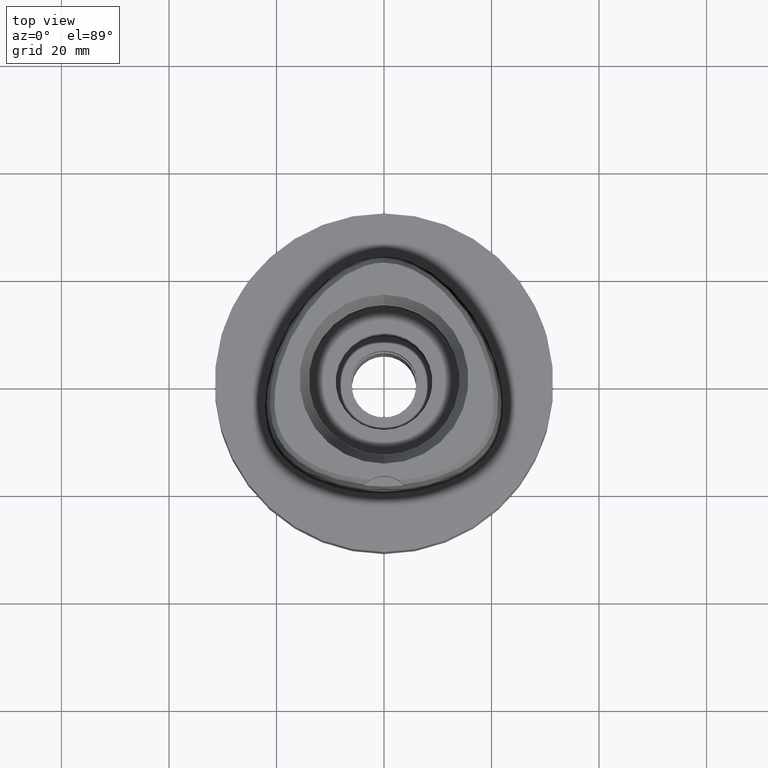
[diagram: clean part render]
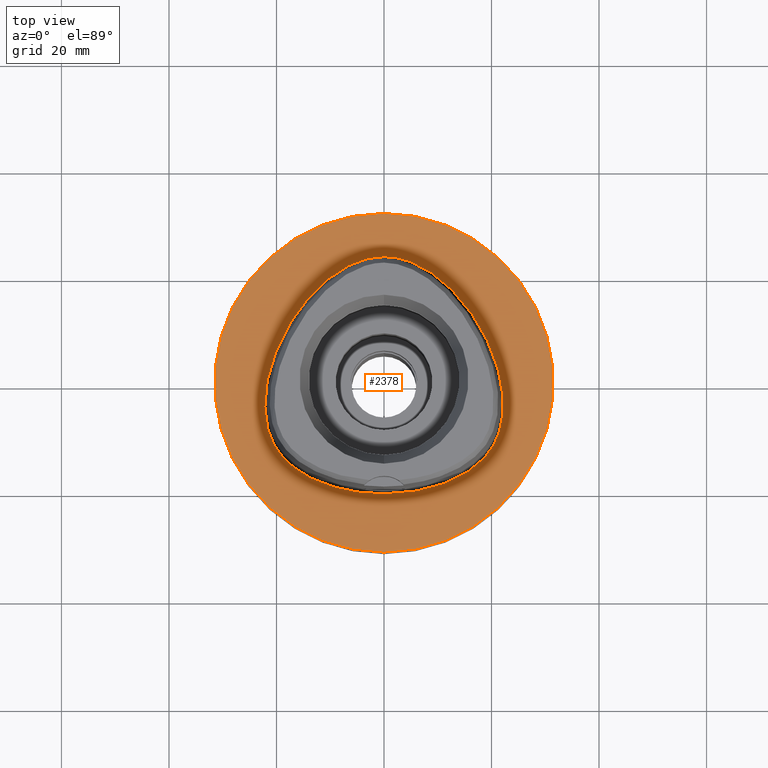
[diagram: same view with one face highlighted and labeled with its STEP entity id]
A machine part, top view. The second image highlights one B-rep face of the part: STEP entity #2378.
In plain terms, the highlighted planar face has unit normal (0, 0, -1).
Its self-contained STEP definition (entity closure, byte-faithful):
#301=CARTESIAN_POINT('',(0.E0,0.E0,0.E0));
#302=DIRECTION('',(0.E0,0.E0,-1.E0));
#303=DIRECTION('',(0.E0,-1.E0,0.E0));
#304=AXIS2_PLACEMENT_3D('',#301,#302,#303);
#309=CARTESIAN_POINT('',(0.E0,0.E0,0.E0));
#310=DIRECTION('',(0.E0,0.E0,-1.E0));
#311=DIRECTION('',(0.E0,1.E0,0.E0));
#312=AXIS2_PLACEMENT_3D('',#309,#310,#311);
#317=CARTESIAN_POINT('',(-1.332771030677E-11,-2.0675E1,1.593170040337E-13));
#318=CARTESIAN_POINT('',(8.668635618114E-1,-2.0675E1,1.593170040337E-13));
#319=CARTESIAN_POINT('',(2.574085744669E0,-2.061244379246E1,
-7.393927889095E-14));
#320=CARTESIAN_POINT('',(5.087321763259E0,-2.033692107424E1,
1.981197006777E-14));
#321=CARTESIAN_POINT('',(7.457228239742E0,-1.989746383402E1,0.E0));
#322=CARTESIAN_POINT('',(9.642360931013E0,-1.932000469216E1,0.E0));
#323=CARTESIAN_POINT('',(1.161475875249E1,-1.863271590628E1,0.E0));
#324=CARTESIAN_POINT('',(1.336657883010E1,-1.786245913721E1,0.E0));
#325=CARTESIAN_POINT('',(1.490385795272E1,-1.703152855201E1,0.E0));
#326=CARTESIAN_POINT('',(1.624039232175E1,-1.615727891587E1,0.E0));
#327=CARTESIAN_POINT('',(1.739413633099E1,-1.525169519717E1,0.E0));
#328=CARTESIAN_POINT('',(1.838376037085E1,-1.432241133478E1,0.E0));
#329=CARTESIAN_POINT('',(1.922761646808E1,-1.337160235576E1,0.E0));
#330=CARTESIAN_POINT('',(1.993658075864E1,-1.240633860554E1,0.E0));
#331=CARTESIAN_POINT('',(2.053390309276E1,-1.140907348742E1,0.E0));
#332=CARTESIAN_POINT('',(2.104266179985E1,-1.034118628221E1,0.E0));
#333=CARTESIAN_POINT('',(2.147165783006E1,-9.172770173640E0,0.E0));
#334=CARTESIAN_POINT('',(2.181304575510E1,-7.891292903678E0,0.E0));
#335=CARTESIAN_POINT('',(2.205614142327E1,-6.484116343921E0,0.E0));
#336=CARTESIAN_POINT('',(2.218642871279E1,-4.937696867047E0,0.E0));
#337=CARTESIAN_POINT('',(2.218554074858E1,-3.241749842939E0,0.E0));
#338=CARTESIAN_POINT('',(2.203215039418E1,-1.390046967667E0,0.E0));
#339=CARTESIAN_POINT('',(2.170379289163E1,6.141816135157E-1,0.E0));
#340=CARTESIAN_POINT('',(2.117959066825E1,2.756605347947E0,0.E0));
#341=CARTESIAN_POINT('',(2.044533571743E1,5.004906549923E0,0.E0));
#342=CARTESIAN_POINT('',(1.949764110724E1,7.310997169144E0,0.E0));
#343=CARTESIAN_POINT('',(1.834957951011E1,9.609775913951E0,0.E0));
#344=CARTESIAN_POINT('',(1.702834160611E1,1.183387703272E1,0.E0));
#345=CARTESIAN_POINT('',(1.556975211006E1,1.392549374732E1,0.E0));
#346=CARTESIAN_POINT('',(1.402194911132E1,1.582979053308E1,0.E0));
#347=CARTESIAN_POINT('',(1.243311121268E1,1.751093298070E1,0.E0));
#348=CARTESIAN_POINT('',(1.084451840912E1,1.895373723494E1,0.E0));
#349=CARTESIAN_POINT('',(9.286412256216E0,2.016070912591E1,0.E0));
#350=CARTESIAN_POINT('',(7.778977833570E0,2.114525500213E1,0.E0));
#351=CARTESIAN_POINT('',(6.332494175989E0,2.192732779116E1,0.E0));
#352=CARTESIAN_POINT('',(4.950310982552E0,2.252847672854E1,0.E0));
#353=CARTESIAN_POINT('',(3.631073081959E0,2.296926503261E1,0.E0));
#354=CARTESIAN_POINT('',(2.369413139661E0,2.326780726425E1,1.944840546025E-14));
#355=CARTESIAN_POINT('',(1.160510589301E0,2.343866324057E1,
-7.258243730387E-14));
#356=CARTESIAN_POINT('',(3.818535017165E-1,2.347499999998E1,
1.563934167355E-13));
#357=CARTESIAN_POINT('',(6.589893037965E-11,2.347499999998E1,
1.563934167355E-13));
#362=CARTESIAN_POINT('',(6.589893037965E-11,2.347499999998E1,
1.563934167355E-13));
#363=CARTESIAN_POINT('',(-3.819545190614E-1,2.347499999999E1,
1.563934167355E-13));
#364=CARTESIAN_POINT('',(-1.160757516219E0,2.343864704430E1,
-7.258243730387E-14));
#365=CARTESIAN_POINT('',(-2.369807174949E0,2.326773017827E1,
1.944840546025E-14));
#366=CARTESIAN_POINT('',(-3.631252223979E0,2.296920921338E1,0.E0));
#367=CARTESIAN_POINT('',(-4.950454033620E0,2.252841793327E1,0.E0));
#368=CARTESIAN_POINT('',(-6.332411567799E0,2.192736086309E1,0.E0));
#369=CARTESIAN_POINT('',(-7.778752385116E0,2.114538338227E1,0.E0));
#370=CARTESIAN_POINT('',(-9.286019125052E0,2.016098635863E1,0.E0));
#371=CARTESIAN_POINT('',(-1.084406646814E1,1.895410829066E1,0.E0));
#372=CARTESIAN_POINT('',(-1.243235778341E1,1.751165920306E1,0.E0));
#373=CARTESIAN_POINT('',(-1.402095187697E1,1.583090207640E1,0.E0));
#374=CARTESIAN_POINT('',(-1.556828502197E1,1.392741876260E1,0.E0));
#375=CARTESIAN_POINT('',(-1.702671218922E1,1.183635541367E1,0.E0));
#376=CARTESIAN_POINT('',(-1.834730189492E1,9.613868436354E0,0.E0));
#377=CARTESIAN_POINT('',(-1.949526550911E1,7.316168079458E0,0.E0));
#378=CARTESIAN_POINT('',(-2.044312664864E1,5.010861006236E0,0.E0));
#379=CARTESIAN_POINT('',(-2.117774183152E1,2.762973988794E0,0.E0));
#380=CARTESIAN_POINT('',(-2.170223892092E1,6.216685355003E-1,0.E0));
#381=CARTESIAN_POINT('',(-2.203121897998E1,-1.382634589253E0,0.E0));
#382=CARTESIAN_POINT('',(-2.218518521946E1,-3.233837404459E0,0.E0));
#383=CARTESIAN_POINT('',(-2.218674296750E1,-4.930047686920E0,0.E0));
#384=CARTESIAN_POINT('',(-2.205706089626E1,-6.476768816872E0,0.E0));
#385=CARTESIAN_POINT('',(-2.181462267954E1,-7.884203811980E0,0.E0));
#386=CARTESIAN_POINT('',(-2.147337154019E1,-9.167300862221E0,0.E0));
#387=CARTESIAN_POINT('',(-2.104541432008E1,-1.033455454665E1,0.E0));
#388=CARTESIAN_POINT('',(-2.053658335525E1,-1.140432066571E1,0.E0));
#389=CARTESIAN_POINT('',(-1.993711357872E1,-1.240580849703E1,0.E0));
#390=CARTESIAN_POINT('',(-1.922639118946E1,-1.337308812219E1,0.E0));
#391=CARTESIAN_POINT('',(-1.838389785149E1,-1.432221973386E1,0.E0));
#392=CARTESIAN_POINT('',(-1.739384369291E1,-1.525196830095E1,0.E0));
#393=CARTESIAN_POINT('',(-1.624039636135E1,-1.615725904871E1,0.E0));
#394=CARTESIAN_POINT('',(-1.490383773263E1,-1.703154696986E1,0.E0));
#395=CARTESIAN_POINT('',(-1.336647307652E1,-1.786251367714E1,0.E0));
#396=CARTESIAN_POINT('',(-1.161444967383E1,-1.863284557045E1,0.E0));
#397=CARTESIAN_POINT('',(-9.641769449060E0,-1.932018822941E1,0.E0));
#398=CARTESIAN_POINT('',(-7.456544357522E0,-1.989762187118E1,0.E0));
#399=CARTESIAN_POINT('',(-5.086424272104E0,-2.033704833770E1,
1.981197006777E-14));
#400=CARTESIAN_POINT('',(-2.573714508968E0,-2.061245729780E1,
-7.393927889095E-14));
#401=CARTESIAN_POINT('',(-8.667254885380E-1,-2.0675E1,1.593170040337E-13));
#402=CARTESIAN_POINT('',(-1.332771030677E-11,-2.0675E1,1.593170040337E-13));
#1538=VERTEX_POINT('',#362);
#1539=VERTEX_POINT('',#402);
#1544=CARTESIAN_POINT('',(0.E0,-3.15E1,0.E0));
#1545=CARTESIAN_POINT('',(0.E0,3.15E1,0.E0));
#1546=VERTEX_POINT('',#1544);
#1547=VERTEX_POINT('',#1545);
#2362=CARTESIAN_POINT('',(0.E0,0.E0,0.E0));
#2363=DIRECTION('',(0.E0,0.E0,-1.E0));
#2364=DIRECTION('',(0.E0,-1.E0,0.E0));
#2365=AXIS2_PLACEMENT_3D('',#2362,#2363,#2364);
#2366=PLANE('',#2365);
#2368=ORIENTED_EDGE('',*,*,#2367,.T.);
#2370=ORIENTED_EDGE('',*,*,#2369,.T.);
#2371=EDGE_LOOP('',(#2368,#2370));
#2372=FACE_OUTER_BOUND('',#2371,.F.);
#2374=ORIENTED_EDGE('',*,*,#2373,.T.);
#2375=ORIENTED_EDGE('',*,*,#2345,.T.);
#2376=EDGE_LOOP('',(#2374,#2375));
#2377=FACE_BOUND('',#2376,.F.);
#305=CIRCLE('',#304,3.15E1);
#313=CIRCLE('',#312,3.15E1);
#358=B_SPLINE_CURVE_WITH_KNOTS('',3,(#317,#318,#319,#320,#321,#322,#323,#324,
#325,#326,#327,#328,#329,#330,#331,#332,#333,#334,#335,#336,#337,#338,#339,#340,
#341,#342,#343,#344,#345,#346,#347,#348,#349,#350,#351,#352,#353,#354,#355,#356,
#357),.UNSPECIFIED.,.F.,.F.,(4,1,1,1,1,1,1,1,1,1,1,1,1,1,1,1,1,1,1,1,1,1,1,1,1,
1,1,1,1,1,1,1,1,1,1,1,1,1,4),(0.E0,2.631578947368E-2,5.263157894737E-2,
7.894736842105E-2,1.052631578947E-1,1.315789473684E-1,1.578947368421E-1,
1.842105263158E-1,2.105263157895E-1,2.368421052632E-1,2.631578947368E-1,
2.894736842105E-1,3.157894736842E-1,3.421052631579E-1,3.684210526316E-1,
3.947368421053E-1,4.210526315789E-1,4.473684210526E-1,4.736842105263E-1,5.E-1,
5.263157894737E-1,5.526315789474E-1,5.789473684211E-1,6.052631578947E-1,
6.315789473684E-1,6.578947368421E-1,6.842105263158E-1,7.105263157895E-1,
7.368421052632E-1,7.631578947368E-1,7.894736842105E-1,8.157894736842E-1,
8.421052631579E-1,8.684210526316E-1,8.947368421053E-1,9.210526315789E-1,
9.473684210526E-1,9.736842105263E-1,1.E0),.UNSPECIFIED.);
#403=B_SPLINE_CURVE_WITH_KNOTS('',3,(#362,#363,#364,#365,#366,#367,#368,#369,
#370,#371,#372,#373,#374,#375,#376,#377,#378,#379,#380,#381,#382,#383,#384,#385,
#386,#387,#388,#389,#390,#391,#392,#393,#394,#395,#396,#397,#398,#399,#400,#401,
#402),.UNSPECIFIED.,.F.,.F.,(4,1,1,1,1,1,1,1,1,1,1,1,1,1,1,1,1,1,1,1,1,1,1,1,1,
1,1,1,1,1,1,1,1,1,1,1,1,1,4),(0.E0,2.631578947368E-2,5.263157894737E-2,
7.894736842105E-2,1.052631578947E-1,1.315789473684E-1,1.578947368421E-1,
1.842105263158E-1,2.105263157895E-1,2.368421052632E-1,2.631578947368E-1,
2.894736842105E-1,3.157894736842E-1,3.421052631579E-1,3.684210526316E-1,
3.947368421053E-1,4.210526315789E-1,4.473684210526E-1,4.736842105263E-1,5.E-1,
5.263157894737E-1,5.526315789474E-1,5.789473684211E-1,6.052631578947E-1,
6.315789473684E-1,6.578947368421E-1,6.842105263158E-1,7.105263157895E-1,
7.368421052632E-1,7.631578947368E-1,7.894736842105E-1,8.157894736842E-1,
8.421052631579E-1,8.684210526316E-1,8.947368421053E-1,9.210526315789E-1,
9.473684210526E-1,9.736842105263E-1,1.E0),.UNSPECIFIED.);
#2345=EDGE_CURVE('',#1538,#1539,#403,.T.);
#2367=EDGE_CURVE('',#1546,#1547,#305,.T.);
#2369=EDGE_CURVE('',#1547,#1546,#313,.T.);
#2373=EDGE_CURVE('',#1539,#1538,#358,.T.);
#2378=ADVANCED_FACE('',(#2372,#2377),#2366,.F.);